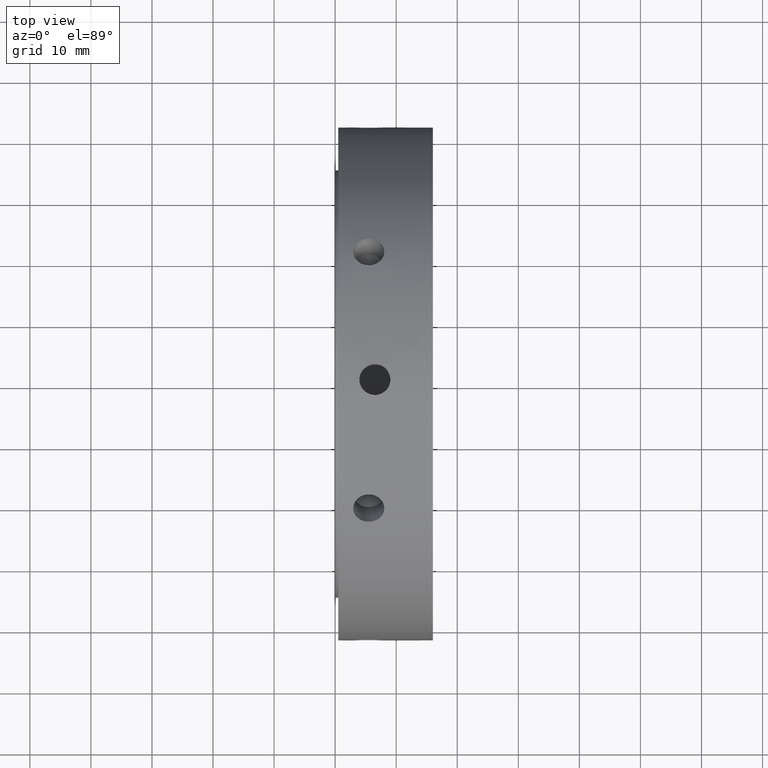
[diagram: clean part render]
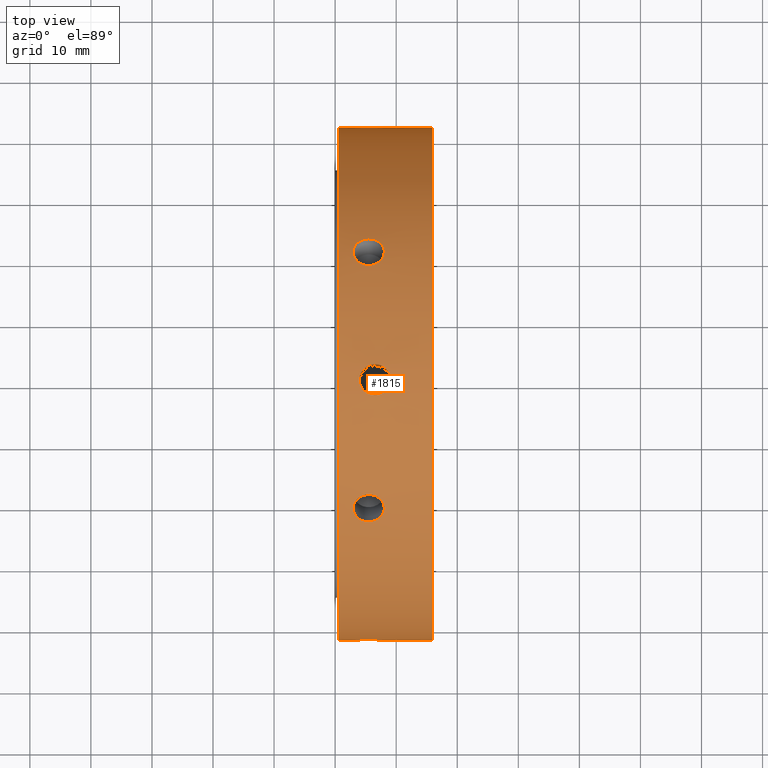
[diagram: same view with one face highlighted and labeled with its STEP entity id]
A machine part, top view. The second image highlights one B-rep face of the part: STEP entity #1815.
In plain terms, the highlighted cylindrical surface (bore or boss wall) has radius 42 mm, axis along (1, 0, 0).
Its self-contained STEP definition (entity closure, byte-faithful):
#534=CARTESIAN_POINT('',(2.949999999999987,21.000000000000036,36.373066958946403));
#535=VERTEX_POINT('',#534);
#536=CARTESIAN_POINT('',(8.049999999999987,21.000000000000036,36.373066958946403));
#537=VERTEX_POINT('',#536);
#538=CARTESIAN_POINT('',(2.949999999999988,21.000000000000036,36.373066958946403));
#539=CARTESIAN_POINT('',(2.949999999999988,21.27736032054527,36.212932903217087));
#540=CARTESIAN_POINT('',(3.014021774852919,21.571141886961836,36.038653743889022));
#541=CARTESIAN_POINT('',(3.274283165528198,22.107916052936684,35.711885609365943));
#542=CARTESIAN_POINT('',(3.470518424442444,22.351018670910342,35.559573921949543));
#543=CARTESIAN_POINT('',(3.923237095581971,22.733357630857665,35.316367084012285));
#544=CARTESIAN_POINT('',(4.209925935404106,22.898120871088977,35.209275027980063));
#545=CARTESIAN_POINT('',(4.838169915415844,23.116203043166635,35.066481778431935));
#546=CARTESIAN_POINT('',(5.179731741287975,23.169623687454536,35.030965418922534));
#547=CARTESIAN_POINT('',(5.820268258711998,23.169623687454532,35.030965418922534));
#548=CARTESIAN_POINT('',(6.161830084584127,23.116203043166639,35.066481778431935));
#549=CARTESIAN_POINT('',(6.790074064595865,22.898120871088985,35.209275027980063));
#550=CARTESIAN_POINT('',(7.076762904418004,22.733357630857661,35.316367084012285));
#551=CARTESIAN_POINT('',(7.529481575557531,22.351018670910342,35.559573921949543));
#552=CARTESIAN_POINT('',(7.72571683447178,22.107916052936684,35.711885609365943));
#553=CARTESIAN_POINT('',(7.985978225147057,21.571141886961836,36.038653743889022));
#554=CARTESIAN_POINT('',(8.049999999999987,21.27736032054527,36.212932903217087));
#555=CARTESIAN_POINT('',(8.049999999999987,21.000000000000036,36.373066958946396));
#556=B_SPLINE_CURVE_WITH_KNOTS('',3,(#538,#539,#540,#541,#542,#543,#544,#545,#546,#547,#548,#549,#550,#551,#552,#553,#554,#555),.UNSPECIFIED.,.F.,.U.,(4,2,2,2,2,2,2,2,4),(0.384321822102382,0.48040225553997,0.576482688977557,0.672563166591161,0.768643644204764,0.864724121818368,0.960804599431972,1.056885032869559,1.152965466307147),.UNSPECIFIED.);
#557=EDGE_CURVE('',#535,#537,#556,.T.);
#559=CARTESIAN_POINT('',(8.049999999999987,21.000000000000036,36.373066958946396));
#560=CARTESIAN_POINT('',(8.049999999999987,20.722639679454801,36.533201014675711));
#561=CARTESIAN_POINT('',(7.985978225147056,20.42481871691821,36.700483734692007));
#562=CARTESIAN_POINT('',(7.725716834471776,19.873442128286548,37.001959731259895));
#563=CARTESIAN_POINT('',(7.529481575557528,19.619985028703844,37.136336930443392));
#564=CARTESIAN_POINT('',(7.076762904418002,19.218192248702437,37.345848763645655));
#565=CARTESIAN_POINT('',(6.790074064595864,19.043066187519369,37.434991887279715));
#566=CARTESIAN_POINT('',(6.161830084584125,18.810362519882933,37.552459963637389));
#567=CARTESIAN_POINT('',(5.820268258711998,18.752894128153898,37.580965418922538));
#568=CARTESIAN_POINT('',(5.499999999999988,18.752894128153898,37.580965418922538));
#569=CARTESIAN_POINT('',(5.179731741287976,18.752894128153898,37.580965418922538));
#570=CARTESIAN_POINT('',(4.83816991541585,18.810362519882933,37.552459963637389));
#571=CARTESIAN_POINT('',(4.20992593540411,19.043066187519369,37.434991887279715));
#572=CARTESIAN_POINT('',(3.923237095581972,19.218192248702437,37.345848763645655));
#573=CARTESIAN_POINT('',(3.470518424442445,19.619985028703844,37.136336930443392));
#574=CARTESIAN_POINT('',(3.274283165528198,19.873442128286548,37.001959731259895));
#575=CARTESIAN_POINT('',(3.014021774852918,20.42481871691821,36.700483734692007));
#576=CARTESIAN_POINT('',(2.949999999999986,20.722639679454801,36.533201014675711));
#577=CARTESIAN_POINT('',(2.949999999999986,21.000000000000036,36.373066958946396));
#578=B_SPLINE_CURVE_WITH_KNOTS('',3,(#559,#560,#561,#562,#563,#564,#565,#566,#567,#568,#569,#570,#571,#572,#573,#574,#575,#576,#577),.UNSPECIFIED.,.F.,.U.,(4,2,2,2,3,2,2,2,4),(1.152965466307147,1.249045899744735,1.345126333182322,1.441206810795926,1.537287288409529,1.633367766023133,1.729448243636736,1.825528677074324,1.921609110511911),.UNSPECIFIED.);
#579=EDGE_CURVE('',#537,#535,#578,.T.);
#646=CARTESIAN_POINT('',(2.949999999999987,42.0,-2.797762E-014));
#647=VERTEX_POINT('',#646);
#648=CARTESIAN_POINT('',(8.049999999999987,42.0,-2.886580E-014));
#649=VERTEX_POINT('',#648);
#650=CARTESIAN_POINT('',(2.949999999999987,42.0,-3.032297E-014));
#651=CARTESIAN_POINT('',(2.949999999999987,42.0,-0.320268111458656));
#652=CARTESIAN_POINT('',(3.01402177485292,41.995960603879979,-0.661829990803022));
#653=CARTESIAN_POINT('',(3.274283165528199,41.981358181223172,-1.290074121893988));
#654=CARTESIAN_POINT('',(3.470518424442444,41.971003699614116,-1.57676300849388));
#655=CARTESIAN_POINT('',(3.923237095581971,41.951549879560027,-2.029481679633407));
#656=CARTESIAN_POINT('',(4.20992593540411,41.941187058608271,-2.225716859299676));
#657=CARTESIAN_POINT('',(4.838169915415849,41.926565563049479,-2.485978185205477));
#658=CARTESIAN_POINT('',(5.179731741287976,41.922517815608359,-2.55000000000003));
#659=CARTESIAN_POINT('',(5.820268258711998,41.922517815608359,-2.55000000000003));
#660=CARTESIAN_POINT('',(6.161830084584122,41.926565563049479,-2.485978185205478));
#661=CARTESIAN_POINT('',(6.79007406459586,41.941187058608271,-2.225716859299678));
#662=CARTESIAN_POINT('',(7.076762904418001,41.951549879560019,-2.029481679633408));
#663=CARTESIAN_POINT('',(7.529481575557531,41.971003699614116,-1.576763008493881));
#664=CARTESIAN_POINT('',(7.725716834471774,41.981358181223172,-1.290074121893988));
#665=CARTESIAN_POINT('',(7.985978225147054,41.995960603879979,-0.661829990803023));
#666=CARTESIAN_POINT('',(8.049999999999987,42.0,-0.320268111458657));
#667=CARTESIAN_POINT('',(8.049999999999987,42.0,-3.122502E-014));
#668=B_SPLINE_CURVE_WITH_KNOTS('',3,(#650,#651,#652,#653,#654,#655,#656,#657,#658,#659,#660,#661,#662,#663,#664,#665,#666,#667),.UNSPECIFIED.,.F.,.U.,(4,2,2,2,2,2,2,2,4),(0.384321822102382,0.48040225553997,0.576482688977558,0.672563166591161,0.768643644204765,0.864724121818368,0.960804599431972,1.056885032869559,1.152965466307147),.UNSPECIFIED.);
#669=EDGE_CURVE('',#647,#649,#668,.T.);
#671=CARTESIAN_POINT('',(8.049999999999987,42.0,-3.143319E-014));
#672=CARTESIAN_POINT('',(8.049999999999987,42.0,0.320268111458594));
#673=CARTESIAN_POINT('',(7.985978225147054,41.995960603879979,0.661829990802961));
#674=CARTESIAN_POINT('',(7.725716834471774,41.981358181223172,1.290074121893926));
#675=CARTESIAN_POINT('',(7.529481575557529,41.971003699614116,1.576763008493819));
#676=CARTESIAN_POINT('',(7.076762904418002,41.951549879560027,2.029481679633346));
#677=CARTESIAN_POINT('',(6.790074064595863,41.941187058608278,2.225716859299615));
#678=CARTESIAN_POINT('',(6.161830084584125,41.926565563049508,2.485978185205416));
#679=CARTESIAN_POINT('',(5.820268258711998,41.922517815608359,2.54999999999997));
#680=CARTESIAN_POINT('',(5.499999999999988,41.922517815608359,2.54999999999997));
#681=CARTESIAN_POINT('',(5.179731741287976,41.922517815608359,2.54999999999997));
#682=CARTESIAN_POINT('',(4.83816991541585,41.926565563049508,2.485978185205417));
#683=CARTESIAN_POINT('',(4.209925935404112,41.941187058608278,2.225716859299616));
#684=CARTESIAN_POINT('',(3.923237095581972,41.951549879560027,2.029481679633347));
#685=CARTESIAN_POINT('',(3.470518424442445,41.971003699614116,1.576763008493819));
#686=CARTESIAN_POINT('',(3.274283165528199,41.981358181223172,1.290074121893927));
#687=CARTESIAN_POINT('',(3.014021774852919,41.995960603879979,0.661829990802961));
#688=CARTESIAN_POINT('',(2.949999999999987,42.0,0.320268111458595));
#689=CARTESIAN_POINT('',(2.949999999999987,42.0,-3.046174E-014));
#690=B_SPLINE_CURVE_WITH_KNOTS('',3,(#671,#672,#673,#674,#675,#676,#677,#678,#679,#680,#681,#682,#683,#684,#685,#686,#687,#688,#689),.UNSPECIFIED.,.F.,.U.,(4,2,2,2,3,2,2,2,4),(1.152965466307147,1.249045899744735,1.345126333182323,1.441206810795926,1.53728728840953,1.633367766023133,1.729448243636737,1.825528677074324,1.921609110511912),.UNSPECIFIED.);
#691=EDGE_CURVE('',#649,#647,#690,.T.);
#758=CARTESIAN_POINT('',(2.949999999999987,20.999999999999986,-36.373066958946431));
#759=VERTEX_POINT('',#758);
#760=CARTESIAN_POINT('',(8.049999999999987,20.999999999999986,-36.373066958946431));
#761=VERTEX_POINT('',#760);
#762=CARTESIAN_POINT('',(2.949999999999987,20.999999999999986,-36.373066958946431));
#763=CARTESIAN_POINT('',(2.949999999999987,20.722639679454748,-36.53320101467574));
#764=CARTESIAN_POINT('',(3.014021774852922,20.424818716918161,-36.700483734692043));
#765=CARTESIAN_POINT('',(3.274283165528201,19.873442128286499,-37.00195973125993));
#766=CARTESIAN_POINT('',(3.470518424442445,19.619985028703791,-37.13633693044342));
#767=CARTESIAN_POINT('',(3.923237095581971,19.218192248702383,-37.345848763645684));
#768=CARTESIAN_POINT('',(4.20992593540411,19.043066187519315,-37.434991887279743));
#769=CARTESIAN_POINT('',(4.838169915415848,18.810362519882879,-37.552459963637418));
#770=CARTESIAN_POINT('',(5.179731741287975,18.752894128153848,-37.580965418922567));
#771=CARTESIAN_POINT('',(5.820268258711998,18.752894128153848,-37.580965418922567));
#772=CARTESIAN_POINT('',(6.161830084584127,18.810362519882879,-37.552459963637418));
#773=CARTESIAN_POINT('',(6.790074064595864,19.043066187519315,-37.434991887279743));
#774=CARTESIAN_POINT('',(7.076762904418002,19.218192248702383,-37.345848763645684));
#775=CARTESIAN_POINT('',(7.529481575557528,19.619985028703791,-37.13633693044342));
#776=CARTESIAN_POINT('',(7.725716834471776,19.873442128286499,-37.001959731259923));
#777=CARTESIAN_POINT('',(7.985978225147056,20.424818716918161,-36.700483734692043));
#778=CARTESIAN_POINT('',(8.049999999999987,20.722639679454748,-36.533201014675747));
#779=CARTESIAN_POINT('',(8.049999999999987,20.999999999999982,-36.373066958946431));
#780=B_SPLINE_CURVE_WITH_KNOTS('',3,(#762,#763,#764,#765,#766,#767,#768,#769,#770,#771,#772,#773,#774,#775,#776,#777,#778,#779),.UNSPECIFIED.,.F.,.U.,(4,2,2,2,2,2,2,2,4),(0.384321822102383,0.48040225553997,0.576482688977558,0.672563166591161,0.768643644204765,0.864724121818368,0.960804599431972,1.056885032869559,1.152965466307147),.UNSPECIFIED.);
#781=EDGE_CURVE('',#759,#761,#780,.T.);
#783=CARTESIAN_POINT('',(8.049999999999987,20.999999999999986,-36.373066958946431));
#784=CARTESIAN_POINT('',(8.049999999999987,21.27736032054522,-36.212932903217116));
#785=CARTESIAN_POINT('',(7.985978225147056,21.571141886961776,-36.038653743889043));
#786=CARTESIAN_POINT('',(7.725716834471777,22.107916052936627,-35.711885609365972));
#787=CARTESIAN_POINT('',(7.529481575557531,22.351018670910292,-35.559573921949564));
#788=CARTESIAN_POINT('',(7.076762904418002,22.733357630857611,-35.316367084012306));
#789=CARTESIAN_POINT('',(6.790074064595862,22.898120871088935,-35.209275027980091));
#790=CARTESIAN_POINT('',(6.161830084584123,23.116203043166589,-35.066481778431971));
#791=CARTESIAN_POINT('',(5.820268258711998,23.169623687454486,-35.030965418922563));
#792=CARTESIAN_POINT('',(5.499999999999988,23.169623687454486,-35.030965418922563));
#793=CARTESIAN_POINT('',(5.179731741287976,23.169623687454486,-35.030965418922563));
#794=CARTESIAN_POINT('',(4.83816991541585,23.116203043166589,-35.066481778431971));
#795=CARTESIAN_POINT('',(4.209925935404112,22.898120871088935,-35.209275027980091));
#796=CARTESIAN_POINT('',(3.923237095581972,22.733357630857611,-35.316367084012306));
#797=CARTESIAN_POINT('',(3.470518424442444,22.351018670910292,-35.559573921949564));
#798=CARTESIAN_POINT('',(3.274283165528197,22.107916052936631,-35.711885609365972));
#799=CARTESIAN_POINT('',(3.014021774852917,21.571141886961783,-36.038653743889043));
#800=CARTESIAN_POINT('',(2.949999999999988,21.27736032054522,-36.212932903217116));
#801=CARTESIAN_POINT('',(2.949999999999988,20.999999999999986,-36.373066958946431));
#802=B_SPLINE_CURVE_WITH_KNOTS('',3,(#783,#784,#785,#786,#787,#788,#789,#790,#791,#792,#793,#794,#795,#796,#797,#798,#799,#800,#801),.UNSPECIFIED.,.F.,.U.,(4,2,2,2,3,2,2,2,4),(1.152965466307147,1.249045899744735,1.345126333182323,1.441206810795926,1.53728728840953,1.633367766023133,1.729448243636737,1.825528677074324,1.921609110511912),.UNSPECIFIED.);
#803=EDGE_CURVE('',#761,#759,#802,.T.);
#870=CARTESIAN_POINT('',(2.949999999999987,-21.000000000000011,-36.37306695894641));
#871=VERTEX_POINT('',#870);
#872=CARTESIAN_POINT('',(8.049999999999987,-21.000000000000014,-36.37306695894641));
#873=VERTEX_POINT('',#872);
#874=CARTESIAN_POINT('',(2.949999999999988,-21.000000000000018,-36.37306695894641));
#875=CARTESIAN_POINT('',(2.949999999999988,-21.277360320545256,-36.212932903217101));
#876=CARTESIAN_POINT('',(3.01402177485292,-21.571141886961819,-36.038653743889029));
#877=CARTESIAN_POINT('',(3.2742831655282,-22.107916052936666,-35.71188560936595));
#878=CARTESIAN_POINT('',(3.470518424442444,-22.351018670910328,-35.55957392194955));
#879=CARTESIAN_POINT('',(3.923237095581971,-22.733357630857647,-35.316367084012292));
#880=CARTESIAN_POINT('',(4.209925935404111,-22.898120871088963,-35.20927502798007));
#881=CARTESIAN_POINT('',(4.83816991541585,-23.116203043166621,-35.066481778431942));
#882=CARTESIAN_POINT('',(5.179731741287976,-23.169623687454511,-35.030965418922541));
#883=CARTESIAN_POINT('',(5.820268258711998,-23.169623687454511,-35.030965418922541));
#884=CARTESIAN_POINT('',(6.161830084584125,-23.116203043166621,-35.066481778431942));
#885=CARTESIAN_POINT('',(6.790074064595863,-22.898120871088963,-35.20927502798007));
#886=CARTESIAN_POINT('',(7.076762904418002,-22.733357630857647,-35.316367084012292));
#887=CARTESIAN_POINT('',(7.529481575557531,-22.351018670910328,-35.55957392194955));
#888=CARTESIAN_POINT('',(7.725716834471776,-22.107916052936666,-35.71188560936595));
#889=CARTESIAN_POINT('',(7.985978225147054,-21.571141886961819,-36.038653743889029));
#890=CARTESIAN_POINT('',(8.049999999999987,-21.277360320545256,-36.212932903217094));
#891=CARTESIAN_POINT('',(8.049999999999987,-21.000000000000018,-36.37306695894641));
#892=B_SPLINE_CURVE_WITH_KNOTS('',3,(#874,#875,#876,#877,#878,#879,#880,#881,#882,#883,#884,#885,#886,#887,#888,#889,#890,#891),.UNSPECIFIED.,.F.,.U.,(4,2,2,2,2,2,2,2,4),(0.384321822102382,0.48040225553997,0.576482688977558,0.672563166591161,0.768643644204765,0.864724121818368,0.960804599431972,1.056885032869559,1.152965466307147),.UNSPECIFIED.);
#893=EDGE_CURVE('',#871,#873,#892,.T.);
#895=CARTESIAN_POINT('',(8.049999999999987,-21.000000000000021,-36.37306695894641));
#896=CARTESIAN_POINT('',(8.049999999999987,-20.722639679454783,-36.533201014675726));
#897=CARTESIAN_POINT('',(7.985978225147056,-20.424818716918193,-36.700483734692014));
#898=CARTESIAN_POINT('',(7.725716834471777,-19.873442128286531,-37.001959731259902));
#899=CARTESIAN_POINT('',(7.529481575557529,-19.619985028703827,-37.136336930443399));
#900=CARTESIAN_POINT('',(7.076762904418002,-19.218192248702415,-37.345848763645662));
#901=CARTESIAN_POINT('',(6.790074064595863,-19.043066187519347,-37.434991887279722));
#902=CARTESIAN_POINT('',(6.161830084584125,-18.810362519882911,-37.552459963637396));
#903=CARTESIAN_POINT('',(5.820268258711998,-18.75289412815388,-37.580965418922545));
#904=CARTESIAN_POINT('',(5.499999999999988,-18.75289412815388,-37.580965418922545));
#905=CARTESIAN_POINT('',(5.179731741287975,-18.75289412815388,-37.580965418922545));
#906=CARTESIAN_POINT('',(4.83816991541585,-18.810362519882911,-37.552459963637396));
#907=CARTESIAN_POINT('',(4.209925935404112,-19.043066187519347,-37.434991887279722));
#908=CARTESIAN_POINT('',(3.923237095581972,-19.218192248702415,-37.345848763645662));
#909=CARTESIAN_POINT('',(3.470518424442445,-19.619985028703827,-37.136336930443399));
#910=CARTESIAN_POINT('',(3.274283165528197,-19.873442128286531,-37.001959731259902));
#911=CARTESIAN_POINT('',(3.014021774852918,-20.424818716918193,-36.700483734692014));
#912=CARTESIAN_POINT('',(2.949999999999987,-20.722639679454783,-36.533201014675726));
#913=CARTESIAN_POINT('',(2.949999999999987,-21.000000000000021,-36.37306695894641));
#914=B_SPLINE_CURVE_WITH_KNOTS('',3,(#895,#896,#897,#898,#899,#900,#901,#902,#903,#904,#905,#906,#907,#908,#909,#910,#911,#912,#913),.UNSPECIFIED.,.F.,.U.,(4,2,2,2,3,2,2,2,4),(1.152965466307147,1.249045899744735,1.345126333182323,1.441206810795926,1.53728728840953,1.633367766023133,1.729448243636737,1.825528677074324,1.921609110511912),.UNSPECIFIED.);
#915=EDGE_CURVE('',#873,#871,#914,.T.);
#982=CARTESIAN_POINT('',(2.949999999999987,-41.999999999999993,1.165734E-014));
#983=VERTEX_POINT('',#982);
#984=CARTESIAN_POINT('',(8.049999999999987,-41.999999999999993,1.332268E-014));
#985=VERTEX_POINT('',#984);
#986=CARTESIAN_POINT('',(2.949999999999987,-42.0,1.366962E-014));
#987=CARTESIAN_POINT('',(2.949999999999987,-42.0,0.320268111458639));
#988=CARTESIAN_POINT('',(3.014021774852919,-41.995960603879979,0.661829990803006));
#989=CARTESIAN_POINT('',(3.274283165528199,-41.981358181223172,1.290074121893972));
#990=CARTESIAN_POINT('',(3.470518424442444,-41.971003699614116,1.576763008493864));
#991=CARTESIAN_POINT('',(3.923237095581971,-41.951549879560027,2.029481679633391));
#992=CARTESIAN_POINT('',(4.209925935404111,-41.941187058608271,2.22571685929966));
#993=CARTESIAN_POINT('',(4.83816991541585,-41.926565563049479,2.485978185205461));
#994=CARTESIAN_POINT('',(5.179731741287976,-41.922517815608359,2.550000000000014));
#995=CARTESIAN_POINT('',(5.820268258711998,-41.922517815608359,2.550000000000014));
#996=CARTESIAN_POINT('',(6.161830084584125,-41.926565563049479,2.485978185205461));
#997=CARTESIAN_POINT('',(6.790074064595863,-41.941187058608271,2.22571685929966));
#998=CARTESIAN_POINT('',(7.076762904418002,-41.951549879560027,2.029481679633391));
#999=CARTESIAN_POINT('',(7.529481575557531,-41.971003699614116,1.576763008493864));
#1000=CARTESIAN_POINT('',(7.725716834471774,-41.981358181223172,1.290074121893972));
#1001=CARTESIAN_POINT('',(7.985978225147054,-41.995960603879979,0.661829990803007));
#1002=CARTESIAN_POINT('',(8.049999999999987,-42.0,0.32026811145864));
#1003=CARTESIAN_POINT('',(8.049999999999987,-42.0,1.457168E-014));
#1004=B_SPLINE_CURVE_WITH_KNOTS('',3,(#986,#987,#988,#989,#990,#991,#992,#993,#994,#995,#996,#997,#998,#999,#1000,#1001,#1002,#1003),.UNSPECIFIED.,.F.,.U.,(4,2,2,2,2,2,2,2,4),(0.384321822102382,0.48040225553997,0.576482688977558,0.672563166591161,0.768643644204765,0.864724121818368,0.960804599431972,1.05688503286956,1.152965466307147),.UNSPECIFIED.);
#1005=EDGE_CURVE('',#983,#985,#1004,.T.);
#1007=CARTESIAN_POINT('',(8.049999999999987,-42.0,1.491862E-014));
#1008=CARTESIAN_POINT('',(8.049999999999987,-42.0,-0.320268111458611));
#1009=CARTESIAN_POINT('',(7.985978225147054,-41.995960603879979,-0.661829990802977));
#1010=CARTESIAN_POINT('',(7.725716834471774,-41.981358181223172,-1.290074121893943));
#1011=CARTESIAN_POINT('',(7.529481575557529,-41.971003699614116,-1.576763008493835));
#1012=CARTESIAN_POINT('',(7.076762904418002,-41.951549879560027,-2.029481679633362));
#1013=CARTESIAN_POINT('',(6.790074064595863,-41.941187058608264,-2.225716859299632));
#1014=CARTESIAN_POINT('',(6.161830084584123,-41.926565563049479,-2.485978185205434));
#1015=CARTESIAN_POINT('',(5.820268258711999,-41.922517815608359,-2.549999999999986));
#1016=CARTESIAN_POINT('',(5.499999999999988,-41.922517815608359,-2.549999999999986));
#1017=CARTESIAN_POINT('',(5.179731741287976,-41.922517815608359,-2.549999999999986));
#1018=CARTESIAN_POINT('',(4.83816991541585,-41.926565563049493,-2.485978185205433));
#1019=CARTESIAN_POINT('',(4.209925935404112,-41.941187058608264,-2.225716859299632));
#1020=CARTESIAN_POINT('',(3.923237095581972,-41.951549879560027,-2.029481679633363));
#1021=CARTESIAN_POINT('',(3.470518424442445,-41.971003699614116,-1.576763008493836));
#1022=CARTESIAN_POINT('',(3.274283165528199,-41.981358181223172,-1.290074121893944));
#1023=CARTESIAN_POINT('',(3.014021774852919,-41.995960603879979,-0.661829990802978));
#1024=CARTESIAN_POINT('',(2.949999999999987,-42.0,-0.320268111458612));
#1025=CARTESIAN_POINT('',(2.949999999999987,-42.0,1.387779E-014));
#1026=B_SPLINE_CURVE_WITH_KNOTS('',3,(#1007,#1008,#1009,#1010,#1011,#1012,#1013,#1014,#1015,#1016,#1017,#1018,#1019,#1020,#1021,#1022,#1023,#1024,#1025),.UNSPECIFIED.,.F.,.U.,(4,2,2,2,3,2,2,2,4),(1.152965466307147,1.249045899744735,1.345126333182323,1.441206810795926,1.53728728840953,1.633367766023133,1.729448243636737,1.825528677074324,1.921609110511912),.UNSPECIFIED.);
#1027=EDGE_CURVE('',#985,#983,#1026,.T.);
#1131=CARTESIAN_POINT('',(2.949999999999987,-20.999999999999996,36.373066958946424));
#1132=VERTEX_POINT('',#1131);
#1133=CARTESIAN_POINT('',(8.049999999999987,-20.999999999999993,36.373066958946424));
#1134=VERTEX_POINT('',#1133);
#1135=CARTESIAN_POINT('',(2.949999999999986,-20.999999999999996,36.373066958946424));
#1136=CARTESIAN_POINT('',(2.949999999999986,-20.722639679454762,36.53320101467574));
#1137=CARTESIAN_POINT('',(3.014021774852917,-20.424818716918178,36.700483734692028));
#1138=CARTESIAN_POINT('',(3.274283165528196,-19.873442128286513,37.001959731259916));
#1139=CARTESIAN_POINT('',(3.470518424442444,-19.619985028703798,37.136336930443406));
#1140=CARTESIAN_POINT('',(3.923237095581971,-19.218192248702394,37.345848763645684));
#1141=CARTESIAN_POINT('',(4.209925935404111,-19.043066187519326,37.434991887279736));
#1142=CARTESIAN_POINT('',(4.838169915415849,-18.81036251988289,37.552459963637411));
#1143=CARTESIAN_POINT('',(5.179731741287975,-18.752894128153855,37.58096541892256));
#1144=CARTESIAN_POINT('',(5.820268258711999,-18.752894128153855,37.58096541892256));
#1145=CARTESIAN_POINT('',(6.161830084584123,-18.81036251988289,37.552459963637411));
#1146=CARTESIAN_POINT('',(6.790074064595863,-19.043066187519326,37.434991887279736));
#1147=CARTESIAN_POINT('',(7.076762904418004,-19.218192248702394,37.345848763645684));
#1148=CARTESIAN_POINT('',(7.529481575557531,-19.619985028703798,37.136336930443406));
#1149=CARTESIAN_POINT('',(7.725716834471779,-19.873442128286513,37.001959731259916));
#1150=CARTESIAN_POINT('',(7.985978225147058,-20.424818716918178,36.700483734692028));
#1151=CARTESIAN_POINT('',(8.049999999999987,-20.722639679454762,36.53320101467574));
#1152=CARTESIAN_POINT('',(8.049999999999987,-20.999999999999996,36.373066958946424));
#1153=B_SPLINE_CURVE_WITH_KNOTS('',3,(#1135,#1136,#1137,#1138,#1139,#1140,#1141,#1142,#1143,#1144,#1145,#1146,#1147,#1148,#1149,#1150,#1151,#1152),.UNSPECIFIED.,.F.,.U.,(4,2,2,2,2,2,2,2,4),(0.384321822102382,0.48040225553997,0.576482688977558,0.672563166591162,0.768643644204765,0.864724121818369,0.960804599431972,1.05688503286956,1.152965466307148),.UNSPECIFIED.);
#1154=EDGE_CURVE('',#1132,#1134,#1153,.T.);
#1156=CARTESIAN_POINT('',(8.049999999999987,-20.999999999999996,36.373066958946424));
#1157=CARTESIAN_POINT('',(8.049999999999987,-21.277360320545231,36.212932903217109));
#1158=CARTESIAN_POINT('',(7.985978225147054,-21.571141886961801,36.038653743889036));
#1159=CARTESIAN_POINT('',(7.725716834471773,-22.107916052936648,35.711885609365964));
#1160=CARTESIAN_POINT('',(7.529481575557528,-22.351018670910307,35.559573921949557));
#1161=CARTESIAN_POINT('',(7.076762904418001,-22.733357630857629,35.316367084012306));
#1162=CARTESIAN_POINT('',(6.790074064595863,-22.898120871088949,35.209275027980091));
#1163=CARTESIAN_POINT('',(6.161830084584125,-23.116203043166603,35.066481778431964));
#1164=CARTESIAN_POINT('',(5.820268258711998,-23.169623687454497,35.030965418922555));
#1165=CARTESIAN_POINT('',(5.499999999999988,-23.169623687454497,35.030965418922555));
#1166=CARTESIAN_POINT('',(5.179731741287976,-23.169623687454497,35.030965418922555));
#1167=CARTESIAN_POINT('',(4.838169915415849,-23.116203043166603,35.066481778431964));
#1168=CARTESIAN_POINT('',(4.209925935404111,-22.898120871088949,35.209275027980091));
#1169=CARTESIAN_POINT('',(3.923237095581972,-22.733357630857629,35.316367084012306));
#1170=CARTESIAN_POINT('',(3.470518424442445,-22.351018670910307,35.559573921949564));
#1171=CARTESIAN_POINT('',(3.2742831655282,-22.107916052936645,35.711885609365964));
#1172=CARTESIAN_POINT('',(3.01402177485292,-21.571141886961797,36.038653743889036));
#1173=CARTESIAN_POINT('',(2.949999999999988,-21.277360320545235,36.212932903217109));
#1174=CARTESIAN_POINT('',(2.949999999999988,-21.0,36.373066958946424));
#1175=B_SPLINE_CURVE_WITH_KNOTS('',3,(#1156,#1157,#1158,#1159,#1160,#1161,#1162,#1163,#1164,#1165,#1166,#1167,#1168,#1169,#1170,#1171,#1172,#1173,#1174),.UNSPECIFIED.,.F.,.U.,(4,2,2,2,3,2,2,2,4),(1.152965466307148,1.249045899744735,1.345126333182323,1.441206810795926,1.53728728840953,1.633367766023133,1.729448243636736,1.825528677074324,1.921609110511912),.UNSPECIFIED.);
#1176=EDGE_CURVE('',#1134,#1132,#1175,.T.);
#1255=CARTESIAN_POINT('',(6.499999999999987,37.580965418922538,-18.752894128153876));
#1256=VERTEX_POINT('',#1255);
#1257=CARTESIAN_POINT('',(6.499999999999987,37.580965418922545,-18.752894128153873));
#1258=CARTESIAN_POINT('',(6.179731741287976,37.580965418922545,-18.752894128153873));
#1259=CARTESIAN_POINT('',(5.83816991541585,37.552459963637396,-18.810362519882908));
#1260=CARTESIAN_POINT('',(5.209925935404112,37.434991887279722,-19.043066187519344));
#1261=CARTESIAN_POINT('',(4.923237095581971,37.345848763645662,-19.218192248702401));
#1262=CARTESIAN_POINT('',(4.470518424442443,37.136336930443399,-19.619985028703812));
#1263=CARTESIAN_POINT('',(4.274283165528201,37.001959731259909,-19.873442128286523));
#1264=CARTESIAN_POINT('',(4.014021774852919,36.700483734692021,-20.424818716918193));
#1265=CARTESIAN_POINT('',(3.949999999999986,36.533201014675718,-20.72263967945478));
#1266=CARTESIAN_POINT('',(3.949999999999988,36.212932903217094,-21.277360320545249));
#1267=CARTESIAN_POINT('',(4.014021774852922,36.038653743889022,-21.571141886961822));
#1268=CARTESIAN_POINT('',(4.274283165528204,35.711885609365943,-22.107916052936673));
#1269=CARTESIAN_POINT('',(4.470518424442443,35.55957392194955,-22.351018670910328));
#1270=CARTESIAN_POINT('',(4.92323709558197,35.316367084012292,-22.733357630857647));
#1271=CARTESIAN_POINT('',(5.209925935404111,35.209275027980084,-22.89812087108896));
#1272=CARTESIAN_POINT('',(5.838169915415849,35.066481778431957,-23.116203043166617));
#1273=CARTESIAN_POINT('',(6.179731741287977,35.030965418922541,-23.169623687454504));
#1274=CARTESIAN_POINT('',(6.820268258711996,35.030965418922541,-23.169623687454504));
#1275=CARTESIAN_POINT('',(7.161830084584126,35.066481778431957,-23.116203043166617));
#1276=CARTESIAN_POINT('',(7.790074064595864,35.209275027980084,-22.89812087108896));
#1277=CARTESIAN_POINT('',(8.076762904418004,35.316367084012292,-22.733357630857647));
#1278=CARTESIAN_POINT('',(8.529481575557531,35.55957392194955,-22.351018670910328));
#1279=CARTESIAN_POINT('',(8.72571683447177,35.711885609365943,-22.107916052936673));
#1280=CARTESIAN_POINT('',(8.985978225147052,36.038653743889022,-21.571141886961822));
#1281=CARTESIAN_POINT('',(9.049999999999987,36.212932903217094,-21.277360320545249));
#1282=CARTESIAN_POINT('',(9.049999999999987,36.533201014675718,-20.72263967945478));
#1283=CARTESIAN_POINT('',(8.985978225147056,36.700483734692028,-20.424818716918193));
#1284=CARTESIAN_POINT('',(8.725716834471776,37.001959731259916,-19.873442128286523));
#1285=CARTESIAN_POINT('',(8.529481575557531,37.136336930443399,-19.619985028703809));
#1286=CARTESIAN_POINT('',(8.076762904418004,37.345848763645662,-19.218192248702401));
#1287=CARTESIAN_POINT('',(7.790074064595862,37.434991887279722,-19.043066187519344));
#1288=CARTESIAN_POINT('',(7.161830084584125,37.552459963637396,-18.810362519882908));
#1289=CARTESIAN_POINT('',(6.820268258711998,37.580965418922545,-18.752894128153873));
#1290=CARTESIAN_POINT('',(6.499999999999987,37.580965418922545,-18.752894128153873));
#1291=B_SPLINE_CURVE_WITH_KNOTS('',3,(#1257,#1258,#1259,#1260,#1261,#1262,#1263,#1264,#1265,#1266,#1267,#1268,#1269,#1270,#1271,#1272,#1273,#1274,#1275,#1276,#1277,#1278,#1279,#1280,#1281,#1282,#1283,#1284,#1285,#1286,#1287,#1288,#1289,#1290),.UNSPECIFIED.,.T.,.U.,(4,2,2,2,2,2,2,2,2,2,2,2,2,2,2,2,4),(0.0,0.096080477613603,0.192160955227207,0.288241388664795,0.384321822102383,0.480402255539971,0.576482688977559,0.672563166591162,0.768643644204765,0.864724121818368,0.960804599431971,1.056885032869559,1.152965466307147,1.249045899744735,1.345126333182324,1.441206810795927,1.53728728840953),.UNSPECIFIED.);
#1292=EDGE_CURVE('',#1256,#1256,#1291,.T.);
#1412=CARTESIAN_POINT('',(6.499999999999987,-35.030965418922555,-23.169623687454486));
#1413=VERTEX_POINT('',#1412);
#1414=CARTESIAN_POINT('',(6.499999999999987,-35.030965418922555,-23.169623687454486));
#1415=CARTESIAN_POINT('',(6.179731741287976,-35.030965418922555,-23.169623687454486));
#1416=CARTESIAN_POINT('',(5.83816991541585,-35.066481778431964,-23.116203043166593));
#1417=CARTESIAN_POINT('',(5.209925935404112,-35.209275027980091,-22.898120871088938));
#1418=CARTESIAN_POINT('',(4.923237095581971,-35.316367084012306,-22.733357630857626));
#1419=CARTESIAN_POINT('',(4.470518424442443,-35.559573921949557,-22.351018670910307));
#1420=CARTESIAN_POINT('',(4.274283165528204,-35.711885609365964,-22.107916052936648));
#1421=CARTESIAN_POINT('',(4.014021774852921,-36.038653743889043,-21.571141886961801));
#1422=CARTESIAN_POINT('',(3.949999999999987,-36.212932903217123,-21.277360320545231));
#1423=CARTESIAN_POINT('',(3.949999999999987,-36.533201014675747,-20.722639679454762));
#1424=CARTESIAN_POINT('',(4.014021774852921,-36.700483734692028,-20.424818716918164));
#1425=CARTESIAN_POINT('',(4.274283165528201,-37.001959731259916,-19.873442128286499));
#1426=CARTESIAN_POINT('',(4.470518424442443,-37.136336930443413,-19.619985028703795));
#1427=CARTESIAN_POINT('',(4.92323709558197,-37.345848763645677,-19.21819224870238));
#1428=CARTESIAN_POINT('',(5.209925935404111,-37.434991887279729,-19.043066187519319));
#1429=CARTESIAN_POINT('',(5.838169915415847,-37.552459963637411,-18.810362519882883));
#1430=CARTESIAN_POINT('',(6.179731741287975,-37.58096541892256,-18.752894128153859));
#1431=CARTESIAN_POINT('',(6.820268258711998,-37.58096541892256,-18.752894128153859));
#1432=CARTESIAN_POINT('',(7.161830084584123,-37.552459963637411,-18.810362519882883));
#1433=CARTESIAN_POINT('',(7.790074064595862,-37.434991887279729,-19.043066187519319));
#1434=CARTESIAN_POINT('',(8.076762904418004,-37.345848763645684,-19.218192248702383));
#1435=CARTESIAN_POINT('',(8.529481575557531,-37.136336930443406,-19.619985028703791));
#1436=CARTESIAN_POINT('',(8.725716834471777,-37.001959731259923,-19.873442128286506));
#1437=CARTESIAN_POINT('',(8.985978225147056,-36.700483734692035,-20.424818716918168));
#1438=CARTESIAN_POINT('',(9.049999999999987,-36.533201014675747,-20.722639679454762));
#1439=CARTESIAN_POINT('',(9.049999999999987,-36.212932903217123,-21.277360320545231));
#1440=CARTESIAN_POINT('',(8.985978225147054,-36.038653743889043,-21.571141886961801));
#1441=CARTESIAN_POINT('',(8.72571683447177,-35.711885609365964,-22.107916052936648));
#1442=CARTESIAN_POINT('',(8.529481575557531,-35.559573921949557,-22.351018670910307));
#1443=CARTESIAN_POINT('',(8.076762904418002,-35.316367084012306,-22.733357630857629));
#1444=CARTESIAN_POINT('',(7.790074064595862,-35.209275027980091,-22.898120871088942));
#1445=CARTESIAN_POINT('',(7.161830084584125,-35.066481778431964,-23.1162030431666));
#1446=CARTESIAN_POINT('',(6.820268258711999,-35.030965418922555,-23.169623687454486));
#1447=CARTESIAN_POINT('',(6.499999999999987,-35.030965418922555,-23.169623687454486));
#1448=B_SPLINE_CURVE_WITH_KNOTS('',3,(#1414,#1415,#1416,#1417,#1418,#1419,#1420,#1421,#1422,#1423,#1424,#1425,#1426,#1427,#1428,#1429,#1430,#1431,#1432,#1433,#1434,#1435,#1436,#1437,#1438,#1439,#1440,#1441,#1442,#1443,#1444,#1445,#1446,#1447),.UNSPECIFIED.,.T.,.U.,(4,2,2,2,2,2,2,2,2,2,2,2,2,2,2,2,4),(0.0,0.096080477613603,0.192160955227207,0.288241388664795,0.384321822102383,0.480402255539971,0.576482688977559,0.672563166591162,0.768643644204765,0.864724121818369,0.960804599431972,1.05688503286956,1.152965466307148,1.249045899744736,1.345126333182324,1.441206810795927,1.537287288409531),.UNSPECIFIED.);
#1449=EDGE_CURVE('',#1413,#1413,#1448,.T.);
#1569=CARTESIAN_POINT('',(6.499999999999987,-2.55,41.922517815608352));
#1570=VERTEX_POINT('',#1569);
#1571=CARTESIAN_POINT('',(6.499999999999987,-2.55,41.922517815608352));
#1572=CARTESIAN_POINT('',(6.179731741287975,-2.55,41.922517815608352));
#1573=CARTESIAN_POINT('',(5.83816991541585,-2.485978185205447,41.926565563049479));
#1574=CARTESIAN_POINT('',(5.209925935404113,-2.225716859299646,41.941187058608271));
#1575=CARTESIAN_POINT('',(4.923237095581971,-2.029481679633377,41.951549879560027));
#1576=CARTESIAN_POINT('',(4.470518424442444,-1.57676300849385,41.971003699614116));
#1577=CARTESIAN_POINT('',(4.2742831655282,-1.290074121893958,41.981358181223172));
#1578=CARTESIAN_POINT('',(4.014021774852919,-0.661829990802992,41.995960603879979));
#1579=CARTESIAN_POINT('',(3.949999999999987,-0.320268111458626,42.0));
#1580=CARTESIAN_POINT('',(3.949999999999987,0.320268111458625,42.0));
#1581=CARTESIAN_POINT('',(4.014021774852919,0.661829990802992,41.995960603879979));
#1582=CARTESIAN_POINT('',(4.2742831655282,1.290074121893957,41.981358181223172));
#1583=CARTESIAN_POINT('',(4.470518424442443,1.57676300849385,41.971003699614116));
#1584=CARTESIAN_POINT('',(4.92323709558197,2.029481679633377,41.951549879560027));
#1585=CARTESIAN_POINT('',(5.209925935404111,2.225716859299646,41.941187058608271));
#1586=CARTESIAN_POINT('',(5.838169915415849,2.485978185205447,41.926565563049479));
#1587=CARTESIAN_POINT('',(6.179731741287975,2.55,41.922517815608359));
#1588=CARTESIAN_POINT('',(6.820268258711999,2.55,41.922517815608359));
#1589=CARTESIAN_POINT('',(7.161830084584122,2.485978185205448,41.926565563049479));
#1590=CARTESIAN_POINT('',(7.79007406459586,2.225716859299647,41.941187058608271));
#1591=CARTESIAN_POINT('',(8.076762904418002,2.029481679633377,41.951549879560027));
#1592=CARTESIAN_POINT('',(8.529481575557529,1.57676300849385,41.971003699614116));
#1593=CARTESIAN_POINT('',(8.725716834471776,1.290074121893958,41.981358181223172));
#1594=CARTESIAN_POINT('',(8.985978225147056,0.661829990802993,41.995960603879979));
#1595=CARTESIAN_POINT('',(9.049999999999987,0.320268111458627,41.999999999999993));
#1596=CARTESIAN_POINT('',(9.049999999999987,-0.320268111458625,42.0));
#1597=CARTESIAN_POINT('',(8.985978225147056,-0.661829990802991,41.995960603879979));
#1598=CARTESIAN_POINT('',(8.725716834471776,-1.290074121893958,41.981358181223172));
#1599=CARTESIAN_POINT('',(8.529481575557531,-1.576763008493849,41.971003699614116));
#1600=CARTESIAN_POINT('',(8.076762904418004,-2.029481679633377,41.951549879560027));
#1601=CARTESIAN_POINT('',(7.790074064595864,-2.225716859299646,41.941187058608271));
#1602=CARTESIAN_POINT('',(7.161830084584126,-2.485978185205447,41.926565563049479));
#1603=CARTESIAN_POINT('',(6.820268258711999,-2.55,41.922517815608352));
#1604=CARTESIAN_POINT('',(6.499999999999987,-2.55,41.922517815608352));
#1605=B_SPLINE_CURVE_WITH_KNOTS('',3,(#1571,#1572,#1573,#1574,#1575,#1576,#1577,#1578,#1579,#1580,#1581,#1582,#1583,#1584,#1585,#1586,#1587,#1588,#1589,#1590,#1591,#1592,#1593,#1594,#1595,#1596,#1597,#1598,#1599,#1600,#1601,#1602,#1603,#1604),.UNSPECIFIED.,.T.,.U.,(4,2,2,2,2,2,2,2,2,2,2,2,2,2,2,2,4),(0.0,0.096080477613603,0.192160955227207,0.288241388664795,0.384321822102382,0.48040225553997,0.576482688977558,0.672563166591161,0.768643644204765,0.864724121818368,0.960804599431972,1.056885032869559,1.152965466307147,1.249045899744735,1.345126333182323,1.441206810795926,1.53728728840953),.UNSPECIFIED.);
#1606=EDGE_CURVE('',#1570,#1570,#1605,.T.);
#1748=CARTESIAN_POINT('',(0.499999999999989,42.0,0.0));
#1749=VERTEX_POINT('',#1748);
#1750=CARTESIAN_POINT('',(0.499999999999989,0.0,0.0));
#1751=DIRECTION('',(1.0,0.0,0.0));
#1752=DIRECTION('',(0.0,1.0,0.0));
#1753=AXIS2_PLACEMENT_3D('',#1750,#1751,#1752);
#1754=CIRCLE('',#1753,42.0);
#1755=EDGE_CURVE('',#1749,#1749,#1754,.T.);
#1763=CARTESIAN_POINT('',(8.249999999999989,0.0,0.0));
#1764=DIRECTION('',(1.0,0.0,0.0));
#1765=DIRECTION('',(0.0,1.0,0.0));
#1766=AXIS2_PLACEMENT_3D('',#1763,#1764,#1765);
#1767=CYLINDRICAL_SURFACE('',#1766,42.0);
#1768=CARTESIAN_POINT('',(15.999999999999988,42.0,0.0));
#1769=VERTEX_POINT('',#1768);
#1770=CARTESIAN_POINT('',(15.999999999999988,0.0,0.0));
#1771=DIRECTION('',(1.0,0.0,0.0));
#1772=DIRECTION('',(0.0,1.0,0.0));
#1773=AXIS2_PLACEMENT_3D('',#1770,#1771,#1772);
#1774=CIRCLE('',#1773,42.0);
#1775=EDGE_CURVE('',#1769,#1769,#1774,.T.);
#1776=ORIENTED_EDGE('',*,*,#1775,.F.);
#1777=EDGE_LOOP('',(#1776));
#1778=FACE_OUTER_BOUND('',#1777,.T.);
#1779=ORIENTED_EDGE('',*,*,#557,.T.);
#1780=ORIENTED_EDGE('',*,*,#579,.T.);
#1781=EDGE_LOOP('',(#1779,#1780));
#1782=FACE_BOUND('',#1781,.T.);
#1783=ORIENTED_EDGE('',*,*,#669,.T.);
#1784=ORIENTED_EDGE('',*,*,#691,.T.);
#1785=EDGE_LOOP('',(#1783,#1784));
#1786=FACE_BOUND('',#1785,.T.);
#1787=ORIENTED_EDGE('',*,*,#781,.T.);
#1788=ORIENTED_EDGE('',*,*,#803,.T.);
#1789=EDGE_LOOP('',(#1787,#1788));
#1790=FACE_BOUND('',#1789,.T.);
#1791=ORIENTED_EDGE('',*,*,#893,.T.);
#1792=ORIENTED_EDGE('',*,*,#915,.T.);
#1793=EDGE_LOOP('',(#1791,#1792));
#1794=FACE_BOUND('',#1793,.T.);
#1795=ORIENTED_EDGE('',*,*,#1005,.T.);
#1796=ORIENTED_EDGE('',*,*,#1027,.T.);
#1797=EDGE_LOOP('',(#1795,#1796));
#1798=FACE_BOUND('',#1797,.T.);
#1799=ORIENTED_EDGE('',*,*,#1154,.T.);
#1800=ORIENTED_EDGE('',*,*,#1176,.T.);
#1801=EDGE_LOOP('',(#1799,#1800));
#1802=FACE_BOUND('',#1801,.T.);
#1803=ORIENTED_EDGE('',*,*,#1292,.T.);
#1804=EDGE_LOOP('',(#1803));
#1805=FACE_BOUND('',#1804,.T.);
#1806=ORIENTED_EDGE('',*,*,#1449,.T.);
#1807=EDGE_LOOP('',(#1806));
#1808=FACE_BOUND('',#1807,.T.);
#1809=ORIENTED_EDGE('',*,*,#1606,.T.);
#1810=EDGE_LOOP('',(#1809));
#1811=FACE_BOUND('',#1810,.T.);
#1812=ORIENTED_EDGE('',*,*,#1755,.T.);
#1813=EDGE_LOOP('',(#1812));
#1814=FACE_BOUND('',#1813,.T.);
#1815=ADVANCED_FACE('',(#1778,#1782,#1786,#1790,#1794,#1798,#1802,#1805,#1808,#1811,#1814),#1767,.T.);